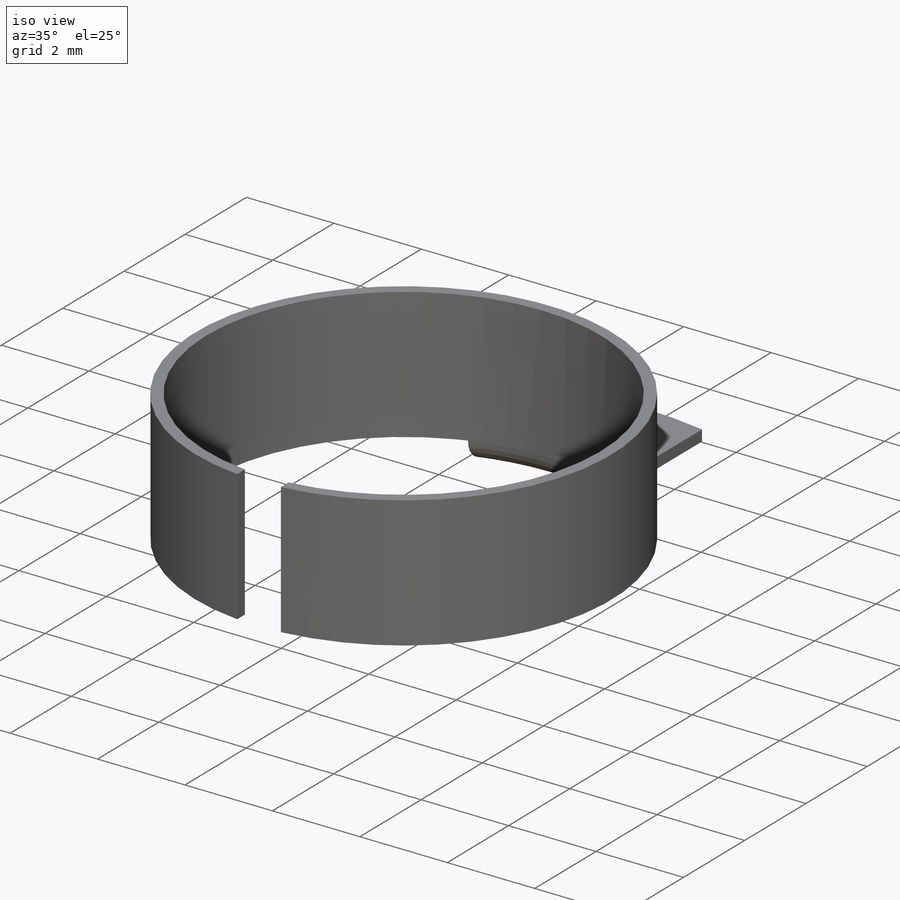
[diagram: iso view]
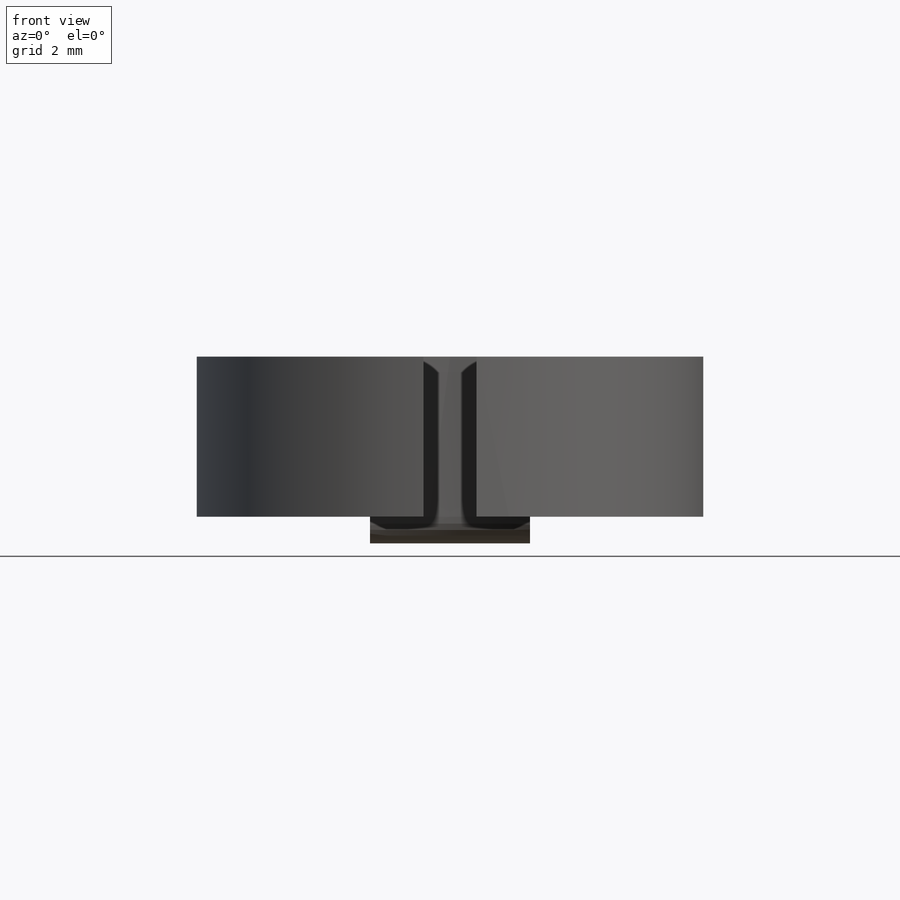
[diagram: front view]
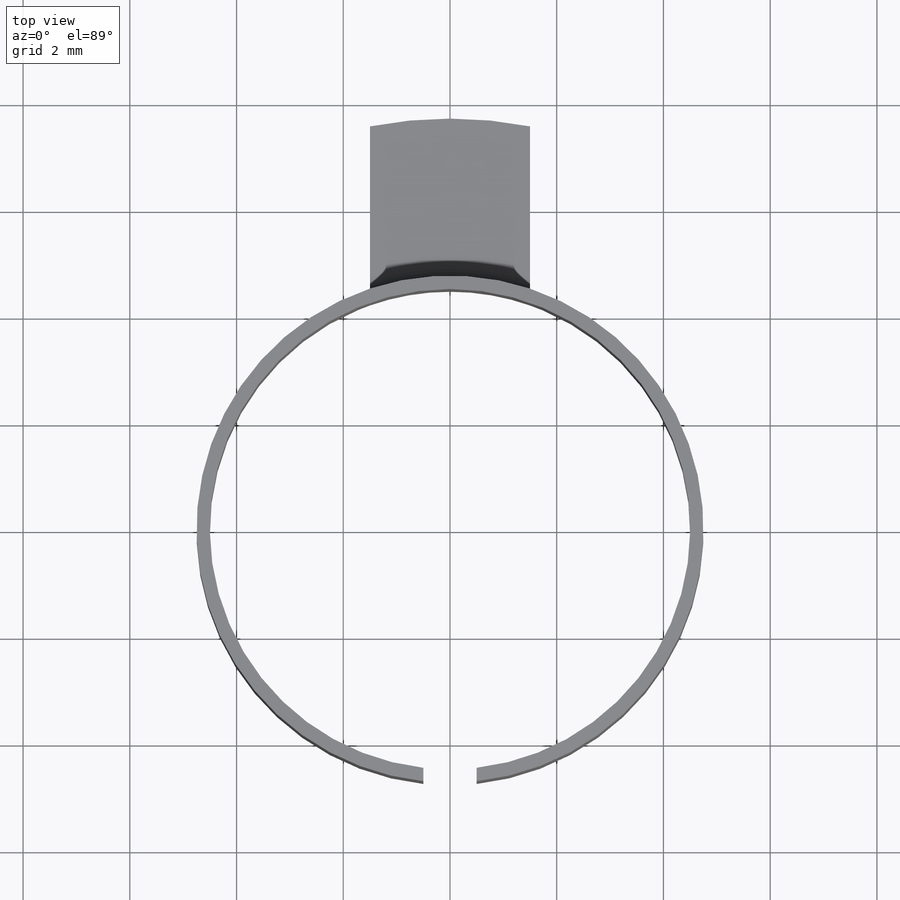
[diagram: top view]
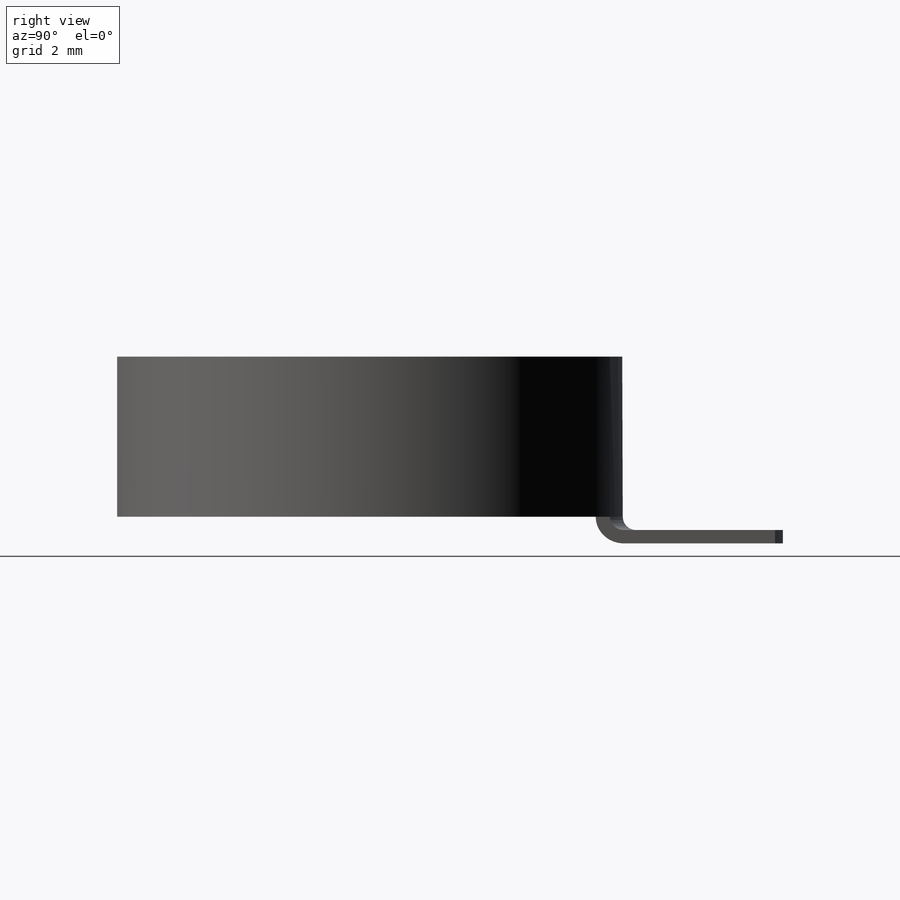
[diagram: right view]
SOLIDWORKS PART (.sldprt)
format: sldprt  version: not decoded by parser v0  size: 229,376 bytes
history: native  units: mm
features: plane x3, sketch x3, cut_extrude x2, fillet x2, material x1, revolve x1 (+13 scaffold rows collapsed)
feature tree (25):
  scaffold x13  (default folders/planes/origin — collapsed)
  material  "Материал <не указан>"
  plane  "Спереди"
  plane  "Сверху"
  plane  "Справа"
  sketch  "Эскиз1"  dims[D1=9.0mm D2=9.5mm D3=15.5mm D4=0.25mm D5=3.5mm D6=5.5mm D7=6.0mm]
  revolve  "Повернуть1"  Angle=360deg
  sketch  "Эскиз2"  dims[c1.D2=8.0mm c1.D1=3.0mm c2.D2=2.4mm]
  cut_extrude  "Вырез-Вытянуть1"  Depth=0.5mm
  sketch  "Эскиз3"  dims[D1=1.0mm]
  cut_extrude  "Вырез-Вытянуть2"  [1 undecoded]
  fillet  "Скругление1"  Radius=0.25mm
  fillet  "Скругление2"  Radius=0.5mm Толщина=2mm
decode coverage: 7 of 8 modeling features carry decoded parameters
note: 1 parameter value undecoded
note: suppression state not decoded; provenance and decode notes live in map.json
